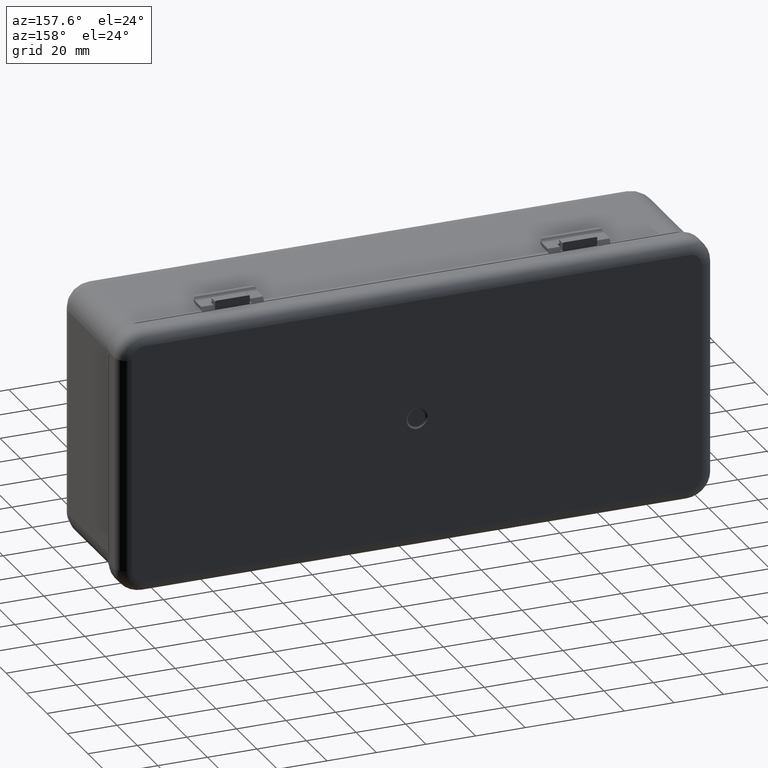
[diagram: clean part render]
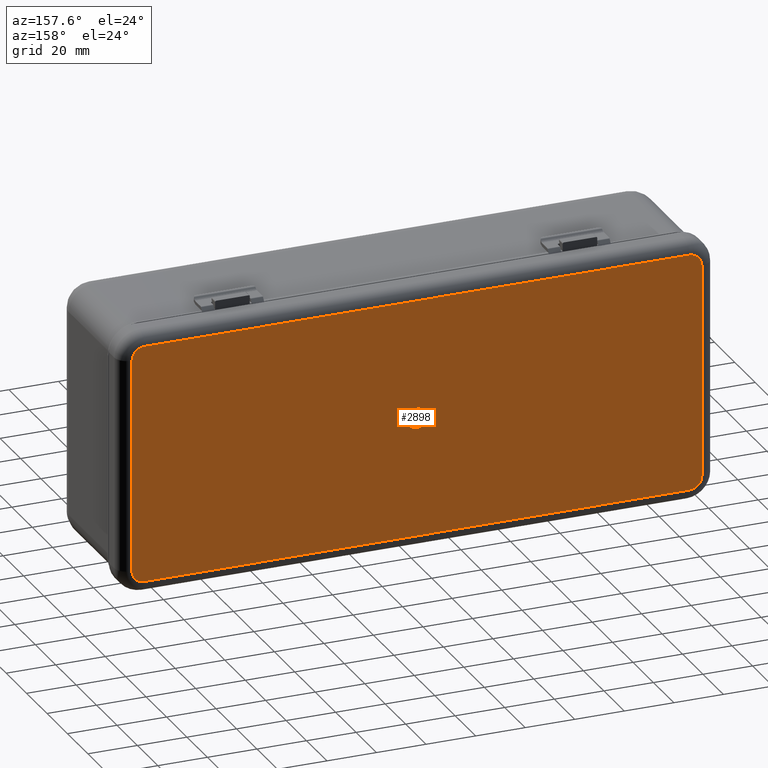
[diagram: same view with one face highlighted and labeled with its STEP entity id]
A machine part, auxiliary view. The second image highlights one B-rep face of the part: STEP entity #2898.
In plain terms, the highlighted planar face has unit normal (0, 1, 0).
Its self-contained STEP definition (entity closure, byte-faithful):
#219 = AXIS2_PLACEMENT_3D ( 'NONE', #4087, #1946, #7612 ) ;
#431 = CARTESIAN_POINT ( 'NONE',  ( 5.204748896376250699E-16, 0.0000000000000000000, -4.250000000000000000 ) ) ;
#559 = VERTEX_POINT ( 'NONE', #431 ) ;
#673 = CARTESIAN_POINT ( 'NONE',  ( 109.9999999999999858, 0.0000000000000000000, -48.00000000000000000 ) ) ;
#717 = DIRECTION ( 'NONE',  ( -1.000000000000000000, -0.0000000000000000000, 0.0000000000000000000 ) ) ;
#890 = CIRCLE ( 'NONE', #4758, 4.999999999999997335 ) ;
#923 = CARTESIAN_POINT ( 'NONE',  ( -114.9999999999999858, 0.0000000000000000000, -43.00000000000000000 ) ) ;
#964 = AXIS2_PLACEMENT_3D ( 'NONE', #3264, #7574, #6879 ) ;
#1089 = CARTESIAN_POINT ( 'NONE',  ( -115.0000000000000000, 0.0000000000000000000, 43.00000000000000000 ) ) ;
#1094 = DIRECTION ( 'NONE',  ( 0.0000000000000000000, -1.000000000000000000, 0.0000000000000000000 ) ) ;
#1262 = CIRCLE ( 'NONE', #219, 4.999999999999997335 ) ;
#1406 = ORIENTED_EDGE ( 'NONE', *, *, #7382, .T. ) ;
#1611 = VERTEX_POINT ( 'NONE', #7762 ) ;
#1845 = CIRCLE ( 'NONE', #6897, 4.250000000000000000 ) ;
#1899 = DIRECTION ( 'NONE',  ( 0.0000000000000000000, -0.0000000000000000000, -1.000000000000000000 ) ) ;
#1946 = DIRECTION ( 'NONE',  ( 0.0000000000000000000, -1.000000000000000000, 0.0000000000000000000 ) ) ;
#2101 = CARTESIAN_POINT ( 'NONE',  ( 0.0000000000000000000, 0.0000000000000000000, 0.0000000000000000000 ) ) ;
#2113 = VERTEX_POINT ( 'NONE', #8700 ) ;
#2349 = DIRECTION ( 'NONE',  ( 0.0000000000000000000, 0.0000000000000000000, -1.000000000000000000 ) ) ;
#2364 = VECTOR ( 'NONE', #3768, 1000.000000000000000 ) ;
#2526 = EDGE_CURVE ( 'NONE', #6688, #1611, #7186, .T. ) ;
#2528 = CARTESIAN_POINT ( 'NONE',  ( 109.9999999999999858, 0.0000000000000000000, 48.00000000000000000 ) ) ;
#2559 = CARTESIAN_POINT ( 'NONE',  ( 0.0000000000000000000, 0.0000000000000000000, 0.0000000000000000000 ) ) ;
#2598 = FACE_BOUND ( 'NONE', #8434, .T. ) ;
#2832 = EDGE_CURVE ( 'NONE', #8321, #6557, #7990, .T. ) ;
#2898 = ADVANCED_FACE ( 'NONE', ( #2598, #8344 ), #3434, .T. ) ;
#3035 = DIRECTION ( 'NONE',  ( 0.0000000000000000000, -1.000000000000000000, 0.0000000000000000000 ) ) ;
#3076 = EDGE_CURVE ( 'NONE', #1611, #5430, #890, .T. ) ;
#3189 = ORIENTED_EDGE ( 'NONE', *, *, #2832, .T. ) ;
#3210 = CIRCLE ( 'NONE', #5718, 4.999999999999997335 ) ;
#3264 = CARTESIAN_POINT ( 'NONE',  ( -110.0000000000000000, 0.0000000000000000000, 43.00000000000000000 ) ) ;
#3434 = PLANE ( 'NONE',  #8739 ) ;
#3516 = ORIENTED_EDGE ( 'NONE', *, *, #8154, .T. ) ;
#3621 = CARTESIAN_POINT ( 'NONE',  ( 109.9999999999999858, 0.0000000000000000000, -43.00000000000000000 ) ) ;
#3768 = DIRECTION ( 'NONE',  ( -0.0000000000000000000, -0.0000000000000000000, -1.000000000000000000 ) ) ;
#3775 = CARTESIAN_POINT ( 'NONE',  ( 114.9999999999999858, 0.0000000000000000000, -43.00000000000000000 ) ) ;
#3939 = VECTOR ( 'NONE', #717, 1000.000000000000000 ) ;
#4087 = CARTESIAN_POINT ( 'NONE',  ( -110.0000000000000000, 0.0000000000000000000, -43.00000000000000000 ) ) ;
#4181 = LINE ( 'NONE', #4962, #9125 ) ;
#4198 = DIRECTION ( 'NONE',  ( 0.0000000000000000000, -1.000000000000000000, 0.0000000000000000000 ) ) ;
#4224 = CARTESIAN_POINT ( 'NONE',  ( -114.9999999999999858, 0.0000000000000000000, -43.00000000000000000 ) ) ;
#4239 = DIRECTION ( 'NONE',  ( 0.0000000000000000000, 0.0000000000000000000, -1.000000000000000000 ) ) ;
#4395 = LINE ( 'NONE', #7821, #3939 ) ;
#4475 = ORIENTED_EDGE ( 'NONE', *, *, #3076, .T. ) ;
#4598 = CARTESIAN_POINT ( 'NONE',  ( 0.0000000000000000000, 0.0000000000000000000, 0.0000000000000000000 ) ) ;
#4758 = AXIS2_PLACEMENT_3D ( 'NONE', #3621, #7882, #6442 ) ;
#4962 = CARTESIAN_POINT ( 'NONE',  ( 114.9999999999999858, 0.0000000000000000000, 43.00000000000000000 ) ) ;
#4969 = CARTESIAN_POINT ( 'NONE',  ( -110.0000000000000000, 0.0000000000000000000, -48.00000000000000000 ) ) ;
#4976 = ORIENTED_EDGE ( 'NONE', *, *, #7179, .F. ) ;
#5049 = ORIENTED_EDGE ( 'NONE', *, *, #8207, .T. ) ;
#5064 = DIRECTION ( 'NONE',  ( -0.0000000000000000000, -0.0000000000000000000, 1.000000000000000000 ) ) ;
#5081 = ORIENTED_EDGE ( 'NONE', *, *, #2526, .T. ) ;
#5177 = EDGE_LOOP ( 'NONE', ( #5049, #5812, #1406, #9095, #3189, #3516, #5081, #4475 ) ) ;
#5279 = DIRECTION ( 'NONE',  ( 0.0000000000000000000, 0.0000000000000000000, -1.000000000000000000 ) ) ;
#5421 = DIRECTION ( 'NONE',  ( 0.0000000000000000000, -1.000000000000000000, 0.0000000000000000000 ) ) ;
#5430 = VERTEX_POINT ( 'NONE', #3775 ) ;
#5466 = VERTEX_POINT ( 'NONE', #2528 ) ;
#5651 = VERTEX_POINT ( 'NONE', #7256 ) ;
#5718 = AXIS2_PLACEMENT_3D ( 'NONE', #6576, #3035, #2349 ) ;
#5812 = ORIENTED_EDGE ( 'NONE', *, *, #8680, .T. ) ;
#6149 = AXIS2_PLACEMENT_3D ( 'NONE', #2101, #4198, #4239 ) ;
#6252 = EDGE_CURVE ( 'NONE', #2113, #559, #9113, .T. ) ;
#6442 = DIRECTION ( 'NONE',  ( 0.0000000000000000000, 0.0000000000000000000, -1.000000000000000000 ) ) ;
#6495 = DIRECTION ( 'NONE',  ( 1.000000000000000000, -0.0000000000000000000, -0.0000000000000000000 ) ) ;
#6557 = VERTEX_POINT ( 'NONE', #4224 ) ;
#6576 = CARTESIAN_POINT ( 'NONE',  ( 110.0000000000000000, 0.0000000000000000000, 43.00000000000000000 ) ) ;
#6688 = VERTEX_POINT ( 'NONE', #4969 ) ;
#6706 = VERTEX_POINT ( 'NONE', #8681 ) ;
#6879 = DIRECTION ( 'NONE',  ( 0.0000000000000000000, 0.0000000000000000000, -1.000000000000000000 ) ) ;
#6897 = AXIS2_PLACEMENT_3D ( 'NONE', #4598, #1094, #5279 ) ;
#7179 = EDGE_CURVE ( 'NONE', #559, #2113, #1845, .T. ) ;
#7186 = LINE ( 'NONE', #673, #7397 ) ;
#7256 = CARTESIAN_POINT ( 'NONE',  ( -110.0000000000000000, 0.0000000000000000000, 48.00000000000000000 ) ) ;
#7382 = EDGE_CURVE ( 'NONE', #5466, #5651, #4395, .T. ) ;
#7397 = VECTOR ( 'NONE', #6495, 1000.000000000000000 ) ;
#7574 = DIRECTION ( 'NONE',  ( 0.0000000000000000000, -1.000000000000000000, 0.0000000000000000000 ) ) ;
#7612 = DIRECTION ( 'NONE',  ( 0.0000000000000000000, 0.0000000000000000000, -1.000000000000000000 ) ) ;
#7762 = CARTESIAN_POINT ( 'NONE',  ( 109.9999999999999858, 0.0000000000000000000, -48.00000000000000000 ) ) ;
#7821 = CARTESIAN_POINT ( 'NONE',  ( -110.0000000000000000, 0.0000000000000000000, 48.00000000000000000 ) ) ;
#7882 = DIRECTION ( 'NONE',  ( 0.0000000000000000000, -1.000000000000000000, 0.0000000000000000000 ) ) ;
#7990 = LINE ( 'NONE', #923, #2364 ) ;
#8031 = EDGE_CURVE ( 'NONE', #5651, #8321, #8532, .T. ) ;
#8154 = EDGE_CURVE ( 'NONE', #6557, #6688, #1262, .T. ) ;
#8207 = EDGE_CURVE ( 'NONE', #5430, #6706, #4181, .T. ) ;
#8321 = VERTEX_POINT ( 'NONE', #1089 ) ;
#8344 = FACE_OUTER_BOUND ( 'NONE', #5177, .T. ) ;
#8434 = EDGE_LOOP ( 'NONE', ( #8850, #4976 ) ) ;
#8532 = CIRCLE ( 'NONE', #964, 4.999999999999997335 ) ;
#8680 = EDGE_CURVE ( 'NONE', #6706, #5466, #3210, .T. ) ;
#8681 = CARTESIAN_POINT ( 'NONE',  ( 114.9999999999999858, 0.0000000000000000000, 43.00000000000000000 ) ) ;
#8700 = CARTESIAN_POINT ( 'NONE',  ( 0.0000000000000000000, 0.0000000000000000000, 4.250000000000000000 ) ) ;
#8739 = AXIS2_PLACEMENT_3D ( 'NONE', #2559, #5421, #1899 ) ;
#8850 = ORIENTED_EDGE ( 'NONE', *, *, #6252, .F. ) ;
#9095 = ORIENTED_EDGE ( 'NONE', *, *, #8031, .T. ) ;
#9113 = CIRCLE ( 'NONE', #6149, 4.250000000000000000 ) ;
#9125 = VECTOR ( 'NONE', #5064, 1000.000000000000000 ) ;